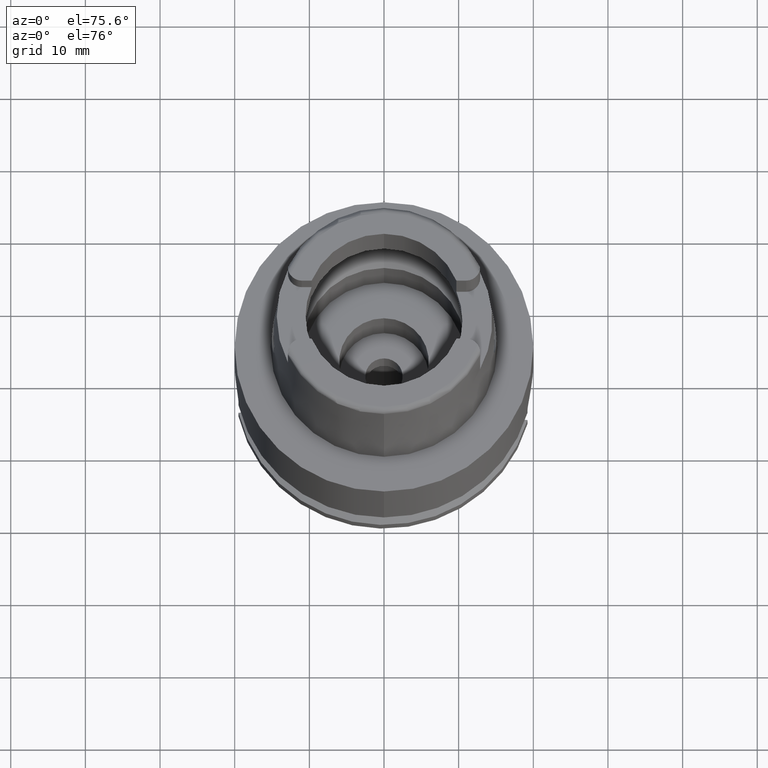
[diagram: clean part render]
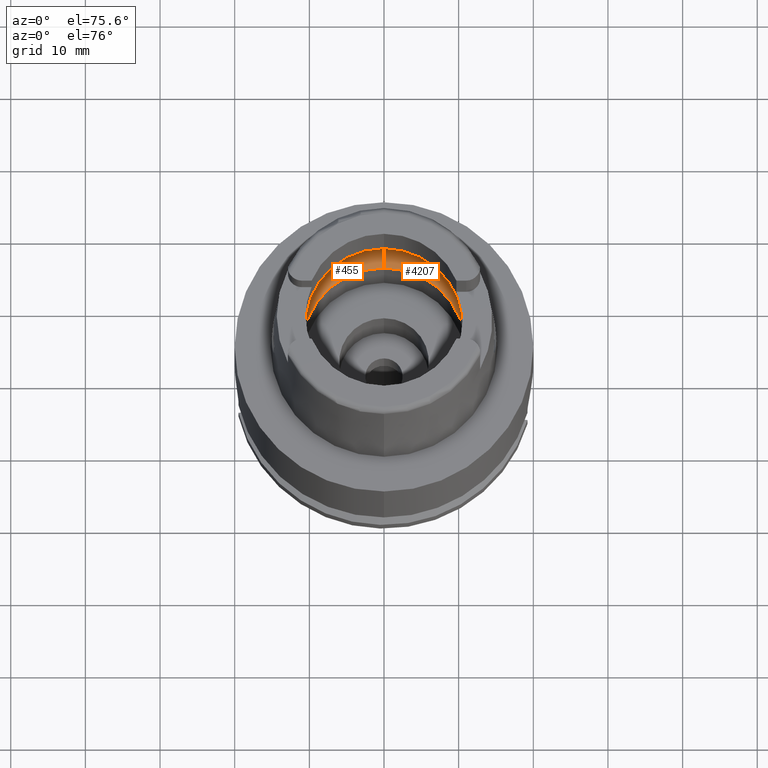
[diagram: same view with one multi-face feature highlighted, each face labeled with its STEP entity id]
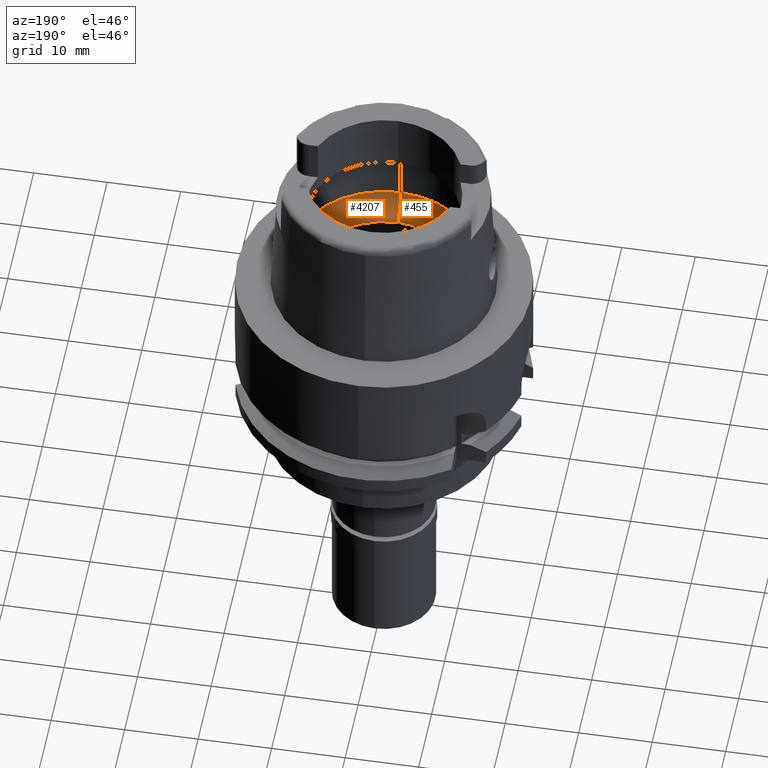
[diagram: same view with one multi-face feature highlighted, each face labeled with its STEP entity id]
A machine part, auxiliary view. The highlighted faces form ONE feature: a constant-radius fillet chain: 2 tangent blend faces with common blend radius 5 mm. The faces share edges in the B-rep.
A second angle (auxiliary view) of the same feature is appended — it is thin or edge-on in the first view.
Their STEP definitions:
[1] entity #4207 (Torus):
#40 = CARTESIAN_POINT ( 'NONE',  ( 0.0000000000000000000, -7.750000000000000000, 3.933312163512999504 ) ) ;
#45 = AXIS2_PLACEMENT_3D ( 'NONE', #2626, #3920, #563 ) ;
#57 = CARTESIAN_POINT ( 'NONE',  ( 12.74455357708000136, 0.0000000000000000000, 3.700000000000000178 ) ) ;
#83 = AXIS2_PLACEMENT_3D ( 'NONE', #4308, #533, #2188 ) ;
#351 = ORIENTED_EDGE ( 'NONE', *, *, #1219, .F. ) ;
#361 = EDGE_CURVE ( 'NONE', #1575, #2168, #1867, .T. ) ;
#449 = ORIENTED_EDGE ( 'NONE', *, *, #2452, .F. ) ;
#533 = DIRECTION ( 'NONE',  ( 0.0000000000000000000, 0.0000000000000000000, 1.000000000000000000 ) ) ;
#563 = DIRECTION ( 'NONE',  ( 0.0000000000000000000, 1.000000000000000000, 0.0000000000000000000 ) ) ;
#581 = CARTESIAN_POINT ( 'NONE',  ( 12.74455357708000136, 0.0000000000000000000, 3.700000000000000178 ) ) ;
#696 = TOROIDAL_SURFACE ( 'NONE', #83, 7.750000000000000000, 5.000000000000000000 ) ;
#886 = DIRECTION ( 'NONE',  ( 0.0000000000000000000, -0.6299999999999791322, -0.7765951326141738997 ) ) ;
#1006 = CIRCLE ( 'NONE', #45, 12.75000000000000000 ) ;
#1041 = EDGE_LOOP ( 'NONE', ( #449, #2980, #4264, #1875, #4095, #3149, #351 ) ) ;
#1219 = EDGE_CURVE ( 'NONE', #5136, #3655, #3873, .T. ) ;
#1260 = DIRECTION ( 'NONE',  ( 1.000000000000000000, 0.0000000000000000000, 0.0000000000000000000 ) ) ;
#1303 = DIRECTION ( 'NONE',  ( 0.0000000000000000000, -1.000000000000000000, 0.0000000000000000000 ) ) ;
#1314 = DIRECTION ( 'NONE',  ( 0.0000000000000000000, 0.6299999999999791322, -0.7765951326141738997 ) ) ;
#1323 = CARTESIAN_POINT ( 'NONE',  ( 0.0000000000000000000, 12.75000000000000000, 3.933312163512999504 ) ) ;
#1352 = VERTEX_POINT ( 'NONE', #4306 ) ;
#1575 = VERTEX_POINT ( 'NONE', #4920 ) ;
#1646 = CARTESIAN_POINT ( 'NONE',  ( 12.74455357708000136, 0.0000000000000000000, 3.700000000000000178 ) ) ;
#1662 = CARTESIAN_POINT ( 'NONE',  ( 0.0000000000000000000, 0.0000000000000000000, 3.933312163512999504 ) ) ;
#1711 = AXIS2_PLACEMENT_3D ( 'NONE', #4527, #4119, #1303 ) ;
#1867 = CIRCLE ( 'NONE', #4916, 5.000000000000000888 ) ;
#1874 = CARTESIAN_POINT ( 'NONE',  ( 0.0000000000000000000, -12.75000000000000000, 3.933312163512999504 ) ) ;
#1875 = ORIENTED_EDGE ( 'NONE', *, *, #4869, .F. ) ;
#1992 = AXIS2_PLACEMENT_3D ( 'NONE', #5066, #1260, #1314 ) ;
#2007 = DIRECTION ( 'NONE',  ( 0.9968615066513458745, -0.07916524841626358666, 0.0000000000000000000 ) ) ;
#2104 = VERTEX_POINT ( 'NONE', #1323 ) ;
#2123 = CARTESIAN_POINT ( 'NONE',  ( 12.71822740102000004, -0.9055573312621000293, 3.882617119810999995 ) ) ;
#2168 = VERTEX_POINT ( 'NONE', #1874 ) ;
#2188 = DIRECTION ( 'NONE',  ( 0.0000000000000000000, 1.000000000000000000, 0.0000000000000000000 ) ) ;
#2452 = EDGE_CURVE ( 'NONE', #2986, #5136, #3622, .T. ) ;
#2455 = CARTESIAN_POINT ( 'NONE',  ( 12.70998420979999999, 1.009356917307000057, 3.933312163512999504 ) ) ;
#2484 = EDGE_CURVE ( 'NONE', #2104, #2986, #1006, .T. ) ;
#2626 = CARTESIAN_POINT ( 'NONE',  ( 0.0000000000000000000, 0.0000000000000000000, 3.933312163512999504 ) ) ;
#2686 = CARTESIAN_POINT ( 'NONE',  ( 12.70998420979999999, -1.009356917307000057, 3.933312163512999504 ) ) ;
#2688 = CIRCLE ( 'NONE', #1992, 5.000000000000000888 ) ;
#2852 = DIRECTION ( 'NONE',  ( 0.0000000000000000000, 0.0000000000000000000, -1.000000000000000000 ) ) ;
#2867 = CARTESIAN_POINT ( 'NONE',  ( 12.73125913416000010, 0.6899131154768000096, 3.796694836489999947 ) ) ;
#2980 = ORIENTED_EDGE ( 'NONE', *, *, #2484, .F. ) ;
#2986 = VERTEX_POINT ( 'NONE', #3685 ) ;
#3139 = FACE_OUTER_BOUND ( 'NONE', #1041, .T. ) ;
#3149 = ORIENTED_EDGE ( 'NONE', *, *, #4741, .F. ) ;
#3157 = CARTESIAN_POINT ( 'NONE',  ( 12.70998420979999999, -1.009356917307000057, 3.933312163512999504 ) ) ;
#3280 = CARTESIAN_POINT ( 'NONE',  ( 12.71822753198000022, 0.9055556822149001261, 3.882616314426999615 ) ) ;
#3377 = DIRECTION ( 'NONE',  ( -1.000000000000000000, 0.0000000000000000000, 0.0000000000000000000 ) ) ;
#3509 = CARTESIAN_POINT ( 'NONE',  ( 12.73125904006000120, -0.6899171919978999146, 3.796695554555000296 ) ) ;
#3622 = B_SPLINE_CURVE_WITH_KNOTS ( 'NONE', 3,
 ( #2455, #3280, #2867, #4139, #5387, #1646 ),
 .UNSPECIFIED., .F., .F.,
 ( 4, 1, 1, 4 ),
 ( 0.0000000000000000000, 0.3333333333333000081, 0.6666666666667000474, 1.000000000000000000 ),
 .UNSPECIFIED. ) ;
#3634 = CIRCLE ( 'NONE', #1711, 10.90000000000000036 ) ;
#3655 = VERTEX_POINT ( 'NONE', #2686 ) ;
#3685 = CARTESIAN_POINT ( 'NONE',  ( 12.70998420979999999, 1.009356917307000057, 3.933312163512999504 ) ) ;
#3873 = B_SPLINE_CURVE_WITH_KNOTS ( 'NONE', 3,
 ( #581, #5166, #3908, #3509, #2123, #3157 ),
 .UNSPECIFIED., .F., .F.,
 ( 4, 1, 1, 4 ),
 ( 0.0000000000000000000, 0.3333333333333000081, 0.6666666666667000474, 1.000000000000000000 ),
 .UNSPECIFIED. ) ;
#3908 = CARTESIAN_POINT ( 'NONE',  ( 12.74221194226999998, -0.3492494900268000024, 3.717724218997000118 ) ) ;
#3920 = DIRECTION ( 'NONE',  ( 0.0000000000000000000, 0.0000000000000000000, -1.000000000000000000 ) ) ;
#4061 = EDGE_CURVE ( 'NONE', #1352, #2104, #2688, .T. ) ;
#4062 = CIRCLE ( 'NONE', #4416, 12.75000000000000178 ) ;
#4095 = ORIENTED_EDGE ( 'NONE', *, *, #361, .T. ) ;
#4119 = DIRECTION ( 'NONE',  ( 0.0000000000000000000, 0.0000000000000000000, 1.000000000000000000 ) ) ;
#4139 = CARTESIAN_POINT ( 'NONE',  ( 12.74221164577000209, 0.3492612827266999842, 3.717726391320999912 ) ) ;
#4207 = ADVANCED_FACE ( 'NONE', ( #3139 ), #696, .F. ) ;
#4264 = ORIENTED_EDGE ( 'NONE', *, *, #4061, .F. ) ;
#4306 = CARTESIAN_POINT ( 'NONE',  ( 0.0000000000000000000, 10.90000000000000036, 0.05033650044218999919 ) ) ;
#4308 = CARTESIAN_POINT ( 'NONE',  ( 0.0000000000000000000, 0.0000000000000000000, 3.933312163512999504 ) ) ;
#4416 = AXIS2_PLACEMENT_3D ( 'NONE', #1662, #2852, #2007 ) ;
#4527 = CARTESIAN_POINT ( 'NONE',  ( 0.0000000000000000000, 0.0000000000000000000, 0.05033650044220000508 ) ) ;
#4741 = EDGE_CURVE ( 'NONE', #3655, #2168, #4062, .T. ) ;
#4869 = EDGE_CURVE ( 'NONE', #1575, #1352, #3634, .T. ) ;
#4916 = AXIS2_PLACEMENT_3D ( 'NONE', #40, #3377, #886 ) ;
#4920 = CARTESIAN_POINT ( 'NONE',  ( 0.0000000000000000000, -10.90000000000000036, 0.05033650044220000508 ) ) ;
#5066 = CARTESIAN_POINT ( 'NONE',  ( 0.0000000000000000000, 7.750000000000000000, 3.933312163512999504 ) ) ;
#5136 = VERTEX_POINT ( 'NONE', #57 ) ;
#5166 = CARTESIAN_POINT ( 'NONE',  ( 12.74455357708000136, -0.1165038148416000091, 3.700000000000000178 ) ) ;
#5387 = CARTESIAN_POINT ( 'NONE',  ( 12.74455357708000136, 0.1165090171563999966, 3.700000000000000178 ) ) ;
[2] entity #455 (Torus):
#30 = DIRECTION ( 'NONE',  ( 0.0000000000000000000, 0.0000000000000000000, -1.000000000000000000 ) ) ;
#40 = CARTESIAN_POINT ( 'NONE',  ( 0.0000000000000000000, -7.750000000000000000, 3.933312163512999504 ) ) ;
#47 = DIRECTION ( 'NONE',  ( -0.9968615066513395462, 0.07916524841634305087, 0.0000000000000000000 ) ) ;
#101 = DIRECTION ( 'NONE',  ( 0.0000000000000000000, 1.000000000000000000, 0.0000000000000000000 ) ) ;
#123 = EDGE_CURVE ( 'NONE', #1352, #1575, #289, .T. ) ;
#289 = CIRCLE ( 'NONE', #722, 10.90000000000000036 ) ;
#292 = EDGE_CURVE ( 'NONE', #1712, #2081, #2939, .T. ) ;
#361 = EDGE_CURVE ( 'NONE', #1575, #2168, #1867, .T. ) ;
#389 = EDGE_CURVE ( 'NONE', #1311, #1712, #475, .T. ) ;
#455 = ADVANCED_FACE ( 'NONE', ( #1816 ), #1432, .F. ) ;
#475 = B_SPLINE_CURVE_WITH_KNOTS ( 'NONE', 3,
 ( #2023, #3705, #1620, #4545, #3284, #4960 ),
 .UNSPECIFIED., .F., .F.,
 ( 4, 1, 1, 4 ),
 ( 0.0000000000000000000, 0.3333333333333000081, 0.6666666666667000474, 1.000000000000000000 ),
 .UNSPECIFIED. ) ;
#478 = CARTESIAN_POINT ( 'NONE',  ( -12.71822751322999956, 0.9055559183387998923, 3.882616429747999920 ) ) ;
#543 = DIRECTION ( 'NONE',  ( 0.0000000000000000000, 0.0000000000000000000, -1.000000000000000000 ) ) ;
#722 = AXIS2_PLACEMENT_3D ( 'NONE', #4697, #946, #1822 ) ;
#832 = CARTESIAN_POINT ( 'NONE',  ( -12.73125911061000082, 0.6899137000249000451, 3.796695002014000231 ) ) ;
#835 = EDGE_LOOP ( 'NONE', ( #3893, #1475, #949, #3931, #3868, #1005, #4706 ) ) ;
#845 = DIRECTION ( 'NONE',  ( 0.0000000000000000000, -1.000000000000000000, 0.0000000000000000000 ) ) ;
#886 = DIRECTION ( 'NONE',  ( 0.0000000000000000000, -0.6299999999999791322, -0.7765951326141738997 ) ) ;
#946 = DIRECTION ( 'NONE',  ( 0.0000000000000000000, 0.0000000000000000000, 1.000000000000000000 ) ) ;
#949 = ORIENTED_EDGE ( 'NONE', *, *, #123, .F. ) ;
#1005 = ORIENTED_EDGE ( 'NONE', *, *, #292, .F. ) ;
#1260 = DIRECTION ( 'NONE',  ( 1.000000000000000000, 0.0000000000000000000, 0.0000000000000000000 ) ) ;
#1293 = CARTESIAN_POINT ( 'NONE',  ( -12.70998420979999999, 1.009356917307999923, 3.933312163512999504 ) ) ;
#1311 = VERTEX_POINT ( 'NONE', #1312 ) ;
#1312 = CARTESIAN_POINT ( 'NONE',  ( -12.70998420979999999, -1.009356917307999923, 3.933312163512999504 ) ) ;
#1314 = DIRECTION ( 'NONE',  ( 0.0000000000000000000, 0.6299999999999791322, -0.7765951326141738997 ) ) ;
#1323 = CARTESIAN_POINT ( 'NONE',  ( 0.0000000000000000000, 12.75000000000000000, 3.933312163512999504 ) ) ;
#1352 = VERTEX_POINT ( 'NONE', #4306 ) ;
#1432 = TOROIDAL_SURFACE ( 'NONE', #2370, 7.750000000000000000, 5.000000000000000000 ) ;
#1475 = ORIENTED_EDGE ( 'NONE', *, *, #361, .F. ) ;
#1575 = VERTEX_POINT ( 'NONE', #4920 ) ;
#1620 = CARTESIAN_POINT ( 'NONE',  ( -12.73125906335000046, -0.6899166332000999935, 3.796695391513999596 ) ) ;
#1712 = VERTEX_POINT ( 'NONE', #3131 ) ;
#1816 = FACE_OUTER_BOUND ( 'NONE', #835, .T. ) ;
#1822 = DIRECTION ( 'NONE',  ( 0.0000000000000000000, 1.000000000000000000, 0.0000000000000000000 ) ) ;
#1847 = DIRECTION ( 'NONE',  ( 0.0000000000000000000, 0.0000000000000000000, 1.000000000000000000 ) ) ;
#1867 = CIRCLE ( 'NONE', #4916, 5.000000000000000888 ) ;
#1874 = CARTESIAN_POINT ( 'NONE',  ( 0.0000000000000000000, -12.75000000000000000, 3.933312163512999504 ) ) ;
#1992 = AXIS2_PLACEMENT_3D ( 'NONE', #5066, #1260, #1314 ) ;
#2023 = CARTESIAN_POINT ( 'NONE',  ( -12.70998420979999999, -1.009356917307999923, 3.933312163512999504 ) ) ;
#2054 = CARTESIAN_POINT ( 'NONE',  ( -12.70998420979999999, 1.009356917307999923, 3.933312163512999504 ) ) ;
#2064 = CARTESIAN_POINT ( 'NONE',  ( 0.0000000000000000000, 0.0000000000000000000, 3.933312163512999504 ) ) ;
#2081 = VERTEX_POINT ( 'NONE', #2054 ) ;
#2104 = VERTEX_POINT ( 'NONE', #1323 ) ;
#2136 = CARTESIAN_POINT ( 'NONE',  ( -12.74455357708000136, 0.1165089420520999813, 3.700000000000000178 ) ) ;
#2168 = VERTEX_POINT ( 'NONE', #1874 ) ;
#2370 = AXIS2_PLACEMENT_3D ( 'NONE', #3492, #1847, #101 ) ;
#2583 = CARTESIAN_POINT ( 'NONE',  ( 0.0000000000000000000, 0.0000000000000000000, 3.933312163512999504 ) ) ;
#2688 = CIRCLE ( 'NONE', #1992, 5.000000000000000888 ) ;
#2939 = B_SPLINE_CURVE_WITH_KNOTS ( 'NONE', 3,
 ( #5390, #2136, #3731, #832, #478, #1293 ),
 .UNSPECIFIED., .F., .F.,
 ( 4, 1, 1, 4 ),
 ( 0.0000000000000000000, 0.3333333333333000081, 0.6666666666667000474, 1.000000000000000000 ),
 .UNSPECIFIED. ) ;
#3131 = CARTESIAN_POINT ( 'NONE',  ( -12.74455357708000136, 0.0000000000000000000, 3.700000000000000178 ) ) ;
#3284 = CARTESIAN_POINT ( 'NONE',  ( -12.74455357708000136, -0.1165038350575000048, 3.700000000000000178 ) ) ;
#3377 = DIRECTION ( 'NONE',  ( -1.000000000000000000, 0.0000000000000000000, 0.0000000000000000000 ) ) ;
#3437 = EDGE_CURVE ( 'NONE', #2081, #2104, #4457, .T. ) ;
#3492 = CARTESIAN_POINT ( 'NONE',  ( 0.0000000000000000000, 0.0000000000000000000, 3.933312163512999504 ) ) ;
#3705 = CARTESIAN_POINT ( 'NONE',  ( -12.71822741893999975, -0.9055571055671000069, 3.882617009583000378 ) ) ;
#3731 = CARTESIAN_POINT ( 'NONE',  ( -12.74221165319000093, 0.3492611227261000484, 3.717726340176000122 ) ) ;
#3759 = AXIS2_PLACEMENT_3D ( 'NONE', #2583, #543, #47 ) ;
#3868 = ORIENTED_EDGE ( 'NONE', *, *, #3437, .F. ) ;
#3893 = ORIENTED_EDGE ( 'NONE', *, *, #5291, .F. ) ;
#3931 = ORIENTED_EDGE ( 'NONE', *, *, #4061, .T. ) ;
#4061 = EDGE_CURVE ( 'NONE', #1352, #2104, #2688, .T. ) ;
#4070 = CIRCLE ( 'NONE', #4257, 12.75000000000000000 ) ;
#4257 = AXIS2_PLACEMENT_3D ( 'NONE', #2064, #30, #845 ) ;
#4306 = CARTESIAN_POINT ( 'NONE',  ( 0.0000000000000000000, 10.90000000000000036, 0.05033650044218999919 ) ) ;
#4457 = CIRCLE ( 'NONE', #3759, 12.75000000000000533 ) ;
#4545 = CARTESIAN_POINT ( 'NONE',  ( -12.74221193788999962, -0.3492495252689999941, 3.717724247871999843 ) ) ;
#4697 = CARTESIAN_POINT ( 'NONE',  ( 0.0000000000000000000, 0.0000000000000000000, 0.05033650044220000508 ) ) ;
#4706 = ORIENTED_EDGE ( 'NONE', *, *, #389, .F. ) ;
#4916 = AXIS2_PLACEMENT_3D ( 'NONE', #40, #3377, #886 ) ;
#4920 = CARTESIAN_POINT ( 'NONE',  ( 0.0000000000000000000, -10.90000000000000036, 0.05033650044220000508 ) ) ;
#4960 = CARTESIAN_POINT ( 'NONE',  ( -12.74455357708000136, 0.0000000000000000000, 3.700000000000000178 ) ) ;
#5066 = CARTESIAN_POINT ( 'NONE',  ( 0.0000000000000000000, 7.750000000000000000, 3.933312163512999504 ) ) ;
#5291 = EDGE_CURVE ( 'NONE', #2168, #1311, #4070, .T. ) ;
#5390 = CARTESIAN_POINT ( 'NONE',  ( -12.74455357708000136, 0.0000000000000000000, 3.700000000000000178 ) ) ;